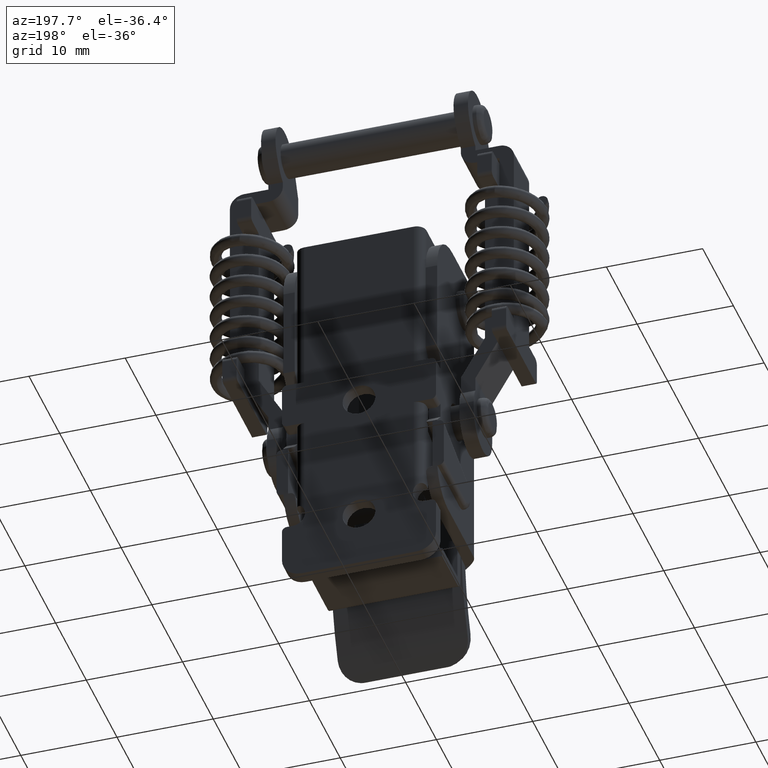
[diagram: clean part render]
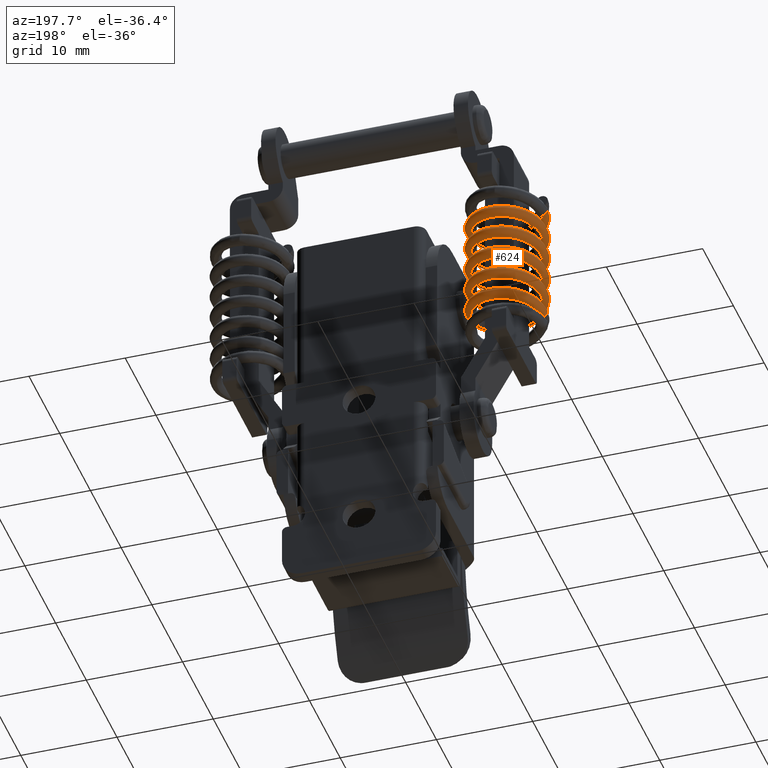
[diagram: same view with one face highlighted and labeled with its STEP entity id]
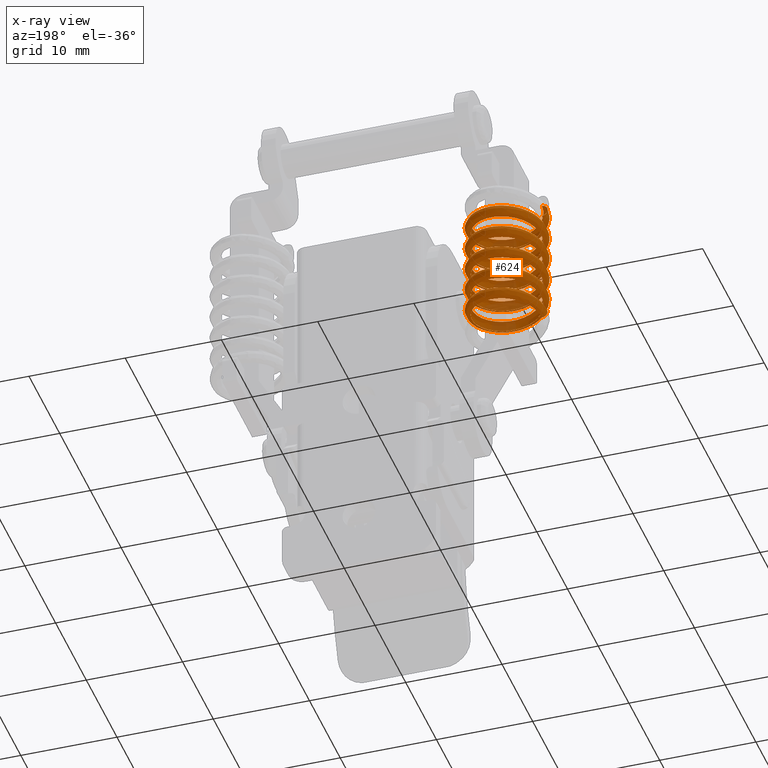
[diagram: x-ray of the same camera — body ghosted, the highlighted face saturated]
A machine part, auxiliary view. The second image highlights one B-rep face of the part: STEP entity #624.
The next image is the same camera in x-ray: the body ghosted, the highlighted face saturated — about 14% of this face is hidden behind the body in this view.
In plain terms, the highlighted face is a freeform B-spline surface patch.
Its self-contained STEP definition (entity closure, byte-faithful):
#624=ADVANCED_FACE('',(#4232),#4231,.F.);
#4231=( BOUNDED_SURFACE() B_SPLINE_SURFACE( 3,2,((#6628,#6629,#6630,#6631,#6632,#6633,#6634,#6635,#6636,#6637,#6638,#6639,#6640,#6641,#6642,#6643,#6644,#6645,#6646,#6647,#6648,#6649,#6650,#6651,#6652,#6653,#6654,#6655,#6656,#6657,#6658,#6659,#6660,#6661,#6662,#6663,#6664,#6665,#6666,#6667,#6668,#6669,#6670,#6671,#6672,#6673,#6674,#6675,#6676,#6677,#6678,#6679,#6680,#6681,#6682,#6683,#6684,#6685,#6686,#6687,#6688),(#6689,#6690,#6691,#6692,#6693,#6694,#6695,#6696,#6697,#6698,#6699,#6700,#6701,#6702,#6703,#6704,#6705,#6706,#6707,#6708,#6709,#6710,#6711,#6712,#6713,#6714,#6715,#6716,#6717,#6718,#6719,#6720,#6721,#6722,#6723,#6724,#6725,#6726,#6727,#6728,#6729,#6730,#6731,#6732,#6733,#6734,#6735,#6736,#6737,#6738,#6739,#6740,#6741,#6742,#6743,#6744,#6745,#6746,#6747,#6748,#6749),(#6750,#6751,#6752,#6753,#6754,#6755,#6756,#6757,#6758,#6759,#6760,#6761,#6762,#6763,#6764,#6765,#6766,#6767,#6768,#6769,#6770,#6771,#6772,#6773,#6774,#6775,#6776,#6777,#6778,#6779,#6780,#6781,#6782,#6783,#6784,#6785,#6786,#6787,#6788,#6789,#6790,#6791,#6792,#6793,#6794,#6795,#6796,#6797,#6798,#6799,#6800,#6801,#6802,#6803,#6804,#6805,#6806,#6807,#6808,#6809,#6810),(#6811,#6812,#6813,#6814,#6815,#6816,#6817,#6818,#6819,#6820,#6821,#6822,#6823,#6824,#6825,#6826,#6827,#6828,#6829,#6830,#6831,#6832,#6833,#6834,#6835,#6836,#6837,#6838,#6839,#6840,#6841,#6842,#6843,#6844,#6845,#6846,#6847,#6848,#6849,#6850,#6851,#6852,#6853,#6854,#6855,#6856,#6857,#6858,#6859,#6860,#6861,#6862,#6863,#6864,#6865,#6866,#6867,#6868,#6869,#6870,#6871),(#6872,#6873,#6874,#6875,#6876,#6877,#6878,#6879,#6880,#6881,#6882,#6883,#6884,#6885,#6886,#6887,#6888,#6889,#6890,#6891,#6892,#6893,#6894,#6895,#6896,#6897,#6898,#6899,#6900,#6901,#6902,#6903,#6904,#6905,#6906,#6907,#6908,#6909,#6910,#6911,#6912,#6913,#6914,#6915,#6916,#6917,#6918,#6919,#6920,#6921,#6922,#6923,#6924,#6925,#6926,#6927,#6928,#6929,#6930,#6931,#6932),(#6933,#6934,#6935,#6936,#6937,#6938,#6939,#6940,#6941,#6942,#6943,#6944,#6945,#6946,#6947,#6948,#6949,#6950,#6951,#6952,#6953,#6954,#6955,#6956,#6957,#6958,#6959,#6960,#6961,#6962,#6963,#6964,#6965,#6966,#6967,#6968,#6969,#6970,#6971,#6972,#6973,#6974,#6975,#6976,#6977,#6978,#6979,#6980,#6981,#6982,#6983,#6984,#6985,#6986,#6987,#6988,#6989,#6990,#6991,#6992,#6993)), .UNSPECIFIED.,.F.,.F.,.F.) B_SPLINE_SURFACE_WITH_KNOTS((4,2,4),(3,2,2,2,2,2,2,2,2,2,2,2,2,2,2,2,2,2,2,2,2,2,2,2,2,2,2,2,2,2,3),(0.00000000000E+00,2.50000000000E-01,5.00000000000E-01),(0.00000000000E+00,3.33333333333E-02,6.66666666667E-02,1.00000000000E-01,1.33333333333E-01,1.66666666667E-01,2.00000000000E-01,2.33333333333E-01,2.66666666667E-01,3.00000000000E-01,3.33333333333E-01,3.66666666667E-01,4.00000000000E-01,4.33333333333E-01,4.66666666667E-01,5.00000000000E-01,5.33333333333E-01,5.66666666667E-01,6.00000000000E-01,6.33333333333E-01,6.66666666667E-01,7.00000000000E-01,7.33333333333E-01,7.66666666667E-01,8.00000000000E-01,8.33333333333E-01,8.66666666667E-01,9.00000000000E-01,9.33333333333E-01,9.66666666667E-01,1.00000000000E+00), .UNSPECIFIED. ) GEOMETRIC_REPRESENTATION_ITEM() RATIONAL_B_SPLINE_SURFACE(((1.00000000000E+00,8.66025403784E-01,1.00000000000E+00,8.66025403784E-01,1.00000000000E+00,8.66025403784E-01,1.00000000000E+00,8.66025403784E-01,1.00000000000E+00,8.66025403784E-01,1.00000000000E+00,8.66025403784E-01,1.00000000000E+00,8.66025403784E-01,1.00000000000E+00,8.66025403784E-01,1.00000000000E+00,8.66025403784E-01,1.00000000000E+00,8.66025403784E-01,1.00000000000E+00,8.66025403784E-01,1.00000000000E+00,8.66025403784E-01,1.00000000000E+00,8.66025403784E-01,1.00000000000E+00,8.66025403784E-01,1.00000000000E+00,8.66025403784E-01,1.00000000000E+00,8.66025403784E-01,1.00000000000E+00,8.66025403784E-01,1.00000000000E+00,8.66025403784E-01,1.00000000000E+00,8.66025403784E-01,1.00000000000E+00,8.66025403784E-01,1.00000000000E+00,8.66025403784E-01,1.00000000000E+00,8.66025403784E-01,1.00000000000E+00,8.66025403784E-01,1.00000000000E+00,8.66025403784E-01,1.00000000000E+00,8.66025403784E-01,1.00000000000E+00,8.66025403784E-01,1.00000000000E+00,8.66025403784E-01,1.00000000000E+00,8.66025403784E-01,1.00000000000E+00,8.66025403784E-01,1.00000000000E+00,8.66025403784E-01,1.00000000000E+00),(1.00000000000E+00,8.66025403784E-01,1.00000000000E+00,8.66025403784E-01,1.00000000000E+00,8.66025403784E-01,1.00000000000E+00,8.66025403784E-01,1.00000000000E+00,8.66025403784E-01,1.00000000000E+00,8.66025403784E-01,1.00000000000E+00,8.66025403784E-01,1.00000000000E+00,8.66025403784E-01,1.00000000000E+00,8.66025403784E-01,1.00000000000E+00,8.66025403784E-01,1.00000000000E+00,8.66025403784E-01,1.00000000000E+00,8.66025403784E-01,1.00000000000E+00,8.66025403784E-01,1.00000000000E+00,8.66025403784E-01,1.00000000000E+00,8.66025403784E-01,1.00000000000E+00,8.66025403784E-01,1.00000000000E+00,8.66025403784E-01,1.00000000000E+00,8.66025403784E-01,1.00000000000E+00,8.66025403784E-01,1.00000000000E+00,8.66025403784E-01,1.00000000000E+00,8.66025403784E-01,1.00000000000E+00,8.66025403784E-01,1.00000000000E+00,8.66025403784E-01,1.00000000000E+00,8.66025403784E-01,1.00000000000E+00,8.66025403784E-01,1.00000000000E+00,8.66025403784E-01,1.00000000000E+00,8.66025403784E-01,1.00000000000E+00,8.66025403784E-01,1.00000000000E+00,8.66025403784E-01,1.00000000000E+00,8.66025403784E-01,1.00000000000E+00),(1.00000000000E+00,8.66025403784E-01,1.00000000000E+00,8.66025403784E-01,1.00000000000E+00,8.66025403784E-01,1.00000000000E+00,8.66025403784E-01,1.00000000000E+00,8.66025403784E-01,1.00000000000E+00,8.66025403784E-01,1.00000000000E+00,8.66025403784E-01,1.00000000000E+00,8.66025403784E-01,1.00000000000E+00,8.66025403784E-01,1.00000000000E+00,8.66025403784E-01,1.00000000000E+00,8.66025403784E-01,1.00000000000E+00,8.66025403784E-01,1.00000000000E+00,8.66025403784E-01,1.00000000000E+00,8.66025403784E-01,1.00000000000E+00,8.66025403784E-01,1.00000000000E+00,8.66025403784E-01,1.00000000000E+00,8.66025403784E-01,1.00000000000E+00,8.66025403784E-01,1.00000000000E+00,8.66025403784E-01,1.00000000000E+00,8.66025403784E-01,1.00000000000E+00,8.66025403784E-01,1.00000000000E+00,8.66025403784E-01,1.00000000000E+00,8.66025403784E-01,1.00000000000E+00,8.66025403784E-01,1.00000000000E+00,8.66025403784E-01,1.00000000000E+00,8.66025403784E-01,1.00000000000E+00,8.66025403784E-01,1.00000000000E+00,8.66025403784E-01,1.00000000000E+00,8.66025403784E-01,1.00000000000E+00,8.66025403784E-01,1.00000000000E+00),(1.00000000000E+00,8.66025403784E-01,1.00000000000E+00,8.66025403784E-01,1.00000000000E+00,8.66025403784E-01,1.00000000000E+00,8.66025403784E-01,1.00000000000E+00,8.66025403784E-01,1.00000000000E+00,8.66025403784E-01,1.00000000000E+00,8.66025403784E-01,1.00000000000E+00,8.66025403784E-01,1.00000000000E+00,8.66025403784E-01,1.00000000000E+00,8.66025403784E-01,1.00000000000E+00,8.66025403784E-01,1.00000000000E+00,8.66025403784E-01,1.00000000000E+00,8.66025403784E-01,1.00000000000E+00,8.66025403784E-01,1.00000000000E+00,8.66025403784E-01,1.00000000000E+00,8.66025403784E-01,1.00000000000E+00,8.66025403784E-01,1.00000000000E+00,8.66025403784E-01,1.00000000000E+00,8.66025403784E-01,1.00000000000E+00,8.66025403784E-01,1.00000000000E+00,8.66025403784E-01,1.00000000000E+00,8.66025403784E-01,1.00000000000E+00,8.66025403784E-01,1.00000000000E+00,8.66025403784E-01,1.00000000000E+00,8.66025403784E-01,1.00000000000E+00,8.66025403784E-01,1.00000000000E+00,8.66025403784E-01,1.00000000000E+00,8.66025403784E-01,1.00000000000E+00,8.66025403784E-01,1.00000000000E+00,8.66025403784E-01,1.00000000000E+00),(1.00000000000E+00,8.66025403784E-01,1.00000000000E+00,8.66025403784E-01,1.00000000000E+00,8.66025403784E-01,1.00000000000E+00,8.66025403784E-01,1.00000000000E+00,8.66025403784E-01,1.00000000000E+00,8.66025403784E-01,1.00000000000E+00,8.66025403784E-01,1.00000000000E+00,8.66025403784E-01,1.00000000000E+00,8.66025403784E-01,1.00000000000E+00,8.66025403784E-01,1.00000000000E+00,8.66025403784E-01,1.00000000000E+00,8.66025403784E-01,1.00000000000E+00,8.66025403784E-01,1.00000000000E+00,8.66025403784E-01,1.00000000000E+00,8.66025403784E-01,1.00000000000E+00,8.66025403784E-01,1.00000000000E+00,8.66025403784E-01,1.00000000000E+00,8.66025403784E-01,1.00000000000E+00,8.66025403784E-01,1.00000000000E+00,8.66025403784E-01,1.00000000000E+00,8.66025403784E-01,1.00000000000E+00,8.66025403784E-01,1.00000000000E+00,8.66025403784E-01,1.00000000000E+00,8.66025403784E-01,1.00000000000E+00,8.66025403784E-01,1.00000000000E+00,8.66025403784E-01,1.00000000000E+00,8.66025403784E-01,1.00000000000E+00,8.66025403784E-01,1.00000000000E+00,8.66025403784E-01,1.00000000000E+00,8.66025403784E-01,1.00000000000E+00),(1.00000000000E+00,8.66025403784E-01,1.00000000000E+00,8.66025403784E-01,1.00000000000E+00,8.66025403784E-01,1.00000000000E+00,8.66025403784E-01,1.00000000000E+00,8.66025403784E-01,1.00000000000E+00,8.66025403784E-01,1.00000000000E+00,8.66025403784E-01,1.00000000000E+00,8.66025403784E-01,1.00000000000E+00,8.66025403784E-01,1.00000000000E+00,8.66025403784E-01,1.00000000000E+00,8.66025403784E-01,1.00000000000E+00,8.66025403784E-01,1.00000000000E+00,8.66025403784E-01,1.00000000000E+00,8.66025403784E-01,1.00000000000E+00,8.66025403784E-01,1.00000000000E+00,8.66025403784E-01,1.00000000000E+00,8.66025403784E-01,1.00000000000E+00,8.66025403784E-01,1.00000000000E+00,8.66025403784E-01,1.00000000000E+00,8.66025403784E-01,1.00000000000E+00,8.66025403784E-01,1.00000000000E+00,8.66025403784E-01,1.00000000000E+00,8.66025403784E-01,1.00000000000E+00,8.66025403784E-01,1.00000000000E+00,8.66025403784E-01,1.00000000000E+00,8.66025403784E-01,1.00000000000E+00,8.66025403784E-01,1.00000000000E+00,8.66025403784E-01,1.00000000000E+00,8.66025403784E-01,1.00000000000E+00,8.66025403784E-01,1.00000000000E+00))) REPRESENTATION_ITEM('') SURFACE() );
#4232=FACE_OUTER_BOUND('',#6994,.T.);
#6628=CARTESIAN_POINT('',(9.65051162410E+00,-1.52982175450E+00,-1.14124925126E+01));
#6629=CARTESIAN_POINT('',(9.68555175230E+00,-3.60798733728E+00,-1.16221591792E+01));
#6630=CARTESIAN_POINT('',(1.15028160043E+01,-4.61672448749E+00,-1.18318258459E+01));
#6631=CARTESIAN_POINT('',(1.33200802564E+01,-5.62546163771E+00,-1.20414925126E+01));
#6632=CARTESIAN_POINT('',(1.51023043802E+01,-4.55603320515E+00,-1.22511591792E+01));
#6633=CARTESIAN_POINT('',(1.68845285041E+01,-3.48660477260E+00,-1.24608258459E+01));
#6634=CARTESIAN_POINT('',(1.68494883759E+01,-1.40843918983E+00,-1.26704925126E+01));
#6635=CARTESIAN_POINT('',(1.68144482477E+01,6.69726392945E-01,-1.28801591792E+01));
#6636=CARTESIAN_POINT('',(1.49971839957E+01,1.67846354316E+00,-1.30898258459E+01));
#6637=CARTESIAN_POINT('',(1.31799197436E+01,2.68720069338E+00,-1.32994925126E+01));
#6638=CARTESIAN_POINT('',(1.13976956198E+01,1.61777226082E+00,-1.35091591792E+01));
#6639=CARTESIAN_POINT('',(9.61547149590E+00,5.48343828267E-01,-1.37188258459E+01));
#6640=CARTESIAN_POINT('',(9.65051162410E+00,-1.52982175450E+00,-1.39284925126E+01));
#6641=CARTESIAN_POINT('',(9.68555175230E+00,-3.60798733728E+00,-1.41381591792E+01));
#6642=CARTESIAN_POINT('',(1.15028160043E+01,-4.61672448749E+00,-1.43478258459E+01));
#6643=CARTESIAN_POINT('',(1.33200802564E+01,-5.62546163771E+00,-1.45574925126E+01));
#6644=CARTESIAN_POINT('',(1.51023043802E+01,-4.55603320515E+00,-1.47671591792E+01));
#6645=CARTESIAN_POINT('',(1.68845285041E+01,-3.48660477260E+00,-1.49768258459E+01));
#6646=CARTESIAN_POINT('',(1.68494883759E+01,-1.40843918983E+00,-1.51864925126E+01));
#6647=CARTESIAN_POINT('',(1.68144482477E+01,6.69726392945E-01,-1.53961591792E+01));
#6648=CARTESIAN_POINT('',(1.49971839957E+01,1.67846354316E+00,-1.56058258459E+01));
#6649=CARTESIAN_POINT('',(1.31799197436E+01,2.68720069338E+00,-1.58154925126E+01));
#6650=CARTESIAN_POINT('',(1.13976956198E+01,1.61777226082E+00,-1.60251591792E+01));
#6651=CARTESIAN_POINT('',(9.61547149590E+00,5.48343828267E-01,-1.62348258459E+01));
#6652=CARTESIAN_POINT('',(9.65051162410E+00,-1.52982175450E+00,-1.64444925126E+01));
#6653=CARTESIAN_POINT('',(9.68555175230E+00,-3.60798733728E+00,-1.66541591792E+01));
#6654=CARTESIAN_POINT('',(1.15028160043E+01,-4.61672448749E+00,-1.68638258459E+01));
#6655=CARTESIAN_POINT('',(1.33200802564E+01,-5.62546163771E+00,-1.70734925126E+01));
#6656=CARTESIAN_POINT('',(1.51023043802E+01,-4.55603320515E+00,-1.72831591792E+01));
#6657=CARTESIAN_POINT('',(1.68845285041E+01,-3.48660477260E+00,-1.74928258459E+01));
#6658=CARTESIAN_POINT('',(1.68494883759E+01,-1.40843918983E+00,-1.77024925126E+01));
#6659=CARTESIAN_POINT('',(1.68144482477E+01,6.69726392945E-01,-1.79121591792E+01));
#6660=CARTESIAN_POINT('',(1.49971839957E+01,1.67846354316E+00,-1.81218258459E+01));
#6661=CARTESIAN_POINT('',(1.31799197436E+01,2.68720069338E+00,-1.83314925126E+01));
#6662=CARTESIAN_POINT('',(1.13976956198E+01,1.61777226082E+00,-1.85411591792E+01));
#6663=CARTESIAN_POINT('',(9.61547149590E+00,5.48343828267E-01,-1.87508258459E+01));
#6664=CARTESIAN_POINT('',(9.65051162410E+00,-1.52982175450E+00,-1.89604925126E+01));
#6665=CARTESIAN_POINT('',(9.68555175230E+00,-3.60798733728E+00,-1.91701591792E+01));
#6666=CARTESIAN_POINT('',(1.15028160043E+01,-4.61672448749E+00,-1.93798258459E+01));
#6667=CARTESIAN_POINT('',(1.33200802564E+01,-5.62546163771E+00,-1.95894925126E+01));
#6668=CARTESIAN_POINT('',(1.51023043802E+01,-4.55603320515E+00,-1.97991591792E+01));
#6669=CARTESIAN_POINT('',(1.68845285041E+01,-3.48660477260E+00,-2.00088258459E+01));
#6670=CARTESIAN_POINT('',(1.68494883759E+01,-1.40843918983E+00,-2.02184925126E+01));
#6671=CARTESIAN_POINT('',(1.68144482477E+01,6.69726392945E-01,-2.04281591792E+01));
#6672=CARTESIAN_POINT('',(1.49971839957E+01,1.67846354316E+00,-2.06378258459E+01));
#6673=CARTESIAN_POINT('',(1.31799197436E+01,2.68720069338E+00,-2.08474925126E+01));
#6674=CARTESIAN_POINT('',(1.13976956198E+01,1.61777226082E+00,-2.10571591792E+01));
#6675=CARTESIAN_POINT('',(9.61547149590E+00,5.48343828267E-01,-2.12668258459E+01));
#6676=CARTESIAN_POINT('',(9.65051162410E+00,-1.52982175450E+00,-2.14764925126E+01));
#6677=CARTESIAN_POINT('',(9.68555175230E+00,-3.60798733728E+00,-2.16861591792E+01));
#6678=CARTESIAN_POINT('',(1.15028160043E+01,-4.61672448749E+00,-2.18958258459E+01));
#6679=CARTESIAN_POINT('',(1.33200802564E+01,-5.62546163771E+00,-2.21054925126E+01));
#6680=CARTESIAN_POINT('',(1.51023043802E+01,-4.55603320515E+00,-2.23151591792E+01));
#6681=CARTESIAN_POINT('',(1.68845285041E+01,-3.48660477260E+00,-2.25248258459E+01));
#6682=CARTESIAN_POINT('',(1.68494883759E+01,-1.40843918983E+00,-2.27344925126E+01));
#6683=CARTESIAN_POINT('',(1.68144482477E+01,6.69726392945E-01,-2.29441591792E+01));
#6684=CARTESIAN_POINT('',(1.49971839957E+01,1.67846354316E+00,-2.31538258459E+01));
#6685=CARTESIAN_POINT('',(1.31799197436E+01,2.68720069338E+00,-2.33634925126E+01));
#6686=CARTESIAN_POINT('',(1.13976956198E+01,1.61777226082E+00,-2.35731591792E+01));
#6687=CARTESIAN_POINT('',(9.61547149590E+00,5.48343828267E-01,-2.37828258459E+01));
#6688=CARTESIAN_POINT('',(9.65051162410E+00,-1.52982175450E+00,-2.39924925126E+01));
#6689=CARTESIAN_POINT('',(9.31918786790E+00,-1.53540823278E+00,-1.14124925126E+01));
#6690=CARTESIAN_POINT('',(9.35745335083E+00,-3.80486367539E+00,-1.16221591792E+01));
#6691=CARTESIAN_POINT('',(1.13419921584E+01,-4.90645251638E+00,-1.18318258459E+01));
#6692=CARTESIAN_POINT('',(1.33265309659E+01,-6.00804135737E+00,-1.20414925126E+01));
#6693=CARTESIAN_POINT('',(1.52728042905E+01,-4.84017475576E+00,-1.22511591792E+01));
#6694=CARTESIAN_POINT('',(1.72190776150E+01,-3.67230815415E+00,-1.24608258459E+01));
#6695=CARTESIAN_POINT('',(1.71808121321E+01,-1.40285271155E+00,-1.26704925126E+01));
#6696=CARTESIAN_POINT('',(1.71425466492E+01,8.66602731057E-01,-1.28801591792E+01));
#6697=CARTESIAN_POINT('',(1.51580078416E+01,1.96819157205E+00,-1.30898258459E+01));
#6698=CARTESIAN_POINT('',(1.31734690341E+01,3.06978041304E+00,-1.32994925126E+01));
#6699=CARTESIAN_POINT('',(1.12271957095E+01,1.90191381143E+00,-1.35091591792E+01));
#6700=CARTESIAN_POINT('',(9.28092238496E+00,7.34047209818E-01,-1.37188258459E+01));
#6701=CARTESIAN_POINT('',(9.31918786790E+00,-1.53540823278E+00,-1.39284925126E+01));
#6702=CARTESIAN_POINT('',(9.35745335083E+00,-3.80486367539E+00,-1.41381591792E+01));
#6703=CARTESIAN_POINT('',(1.13419921584E+01,-4.90645251638E+00,-1.43478258459E+01));
#6704=CARTESIAN_POINT('',(1.33265309659E+01,-6.00804135737E+00,-1.45574925126E+01));
#6705=CARTESIAN_POINT('',(1.52728042905E+01,-4.84017475576E+00,-1.47671591792E+01));
#6706=CARTESIAN_POINT('',(1.72190776150E+01,-3.67230815415E+00,-1.49768258459E+01));
#6707=CARTESIAN_POINT('',(1.71808121321E+01,-1.40285271155E+00,-1.51864925126E+01));
#6708=CARTESIAN_POINT('',(1.71425466492E+01,8.66602731057E-01,-1.53961591792E+01));
#6709=CARTESIAN_POINT('',(1.51580078416E+01,1.96819157205E+00,-1.56058258459E+01));
#6710=CARTESIAN_POINT('',(1.31734690341E+01,3.06978041304E+00,-1.58154925126E+01));
#6711=CARTESIAN_POINT('',(1.12271957095E+01,1.90191381143E+00,-1.60251591792E+01));
#6712=CARTESIAN_POINT('',(9.28092238496E+00,7.34047209818E-01,-1.62348258459E+01));
#6713=CARTESIAN_POINT('',(9.31918786790E+00,-1.53540823278E+00,-1.64444925126E+01));
#6714=CARTESIAN_POINT('',(9.35745335083E+00,-3.80486367539E+00,-1.66541591792E+01));
#6715=CARTESIAN_POINT('',(1.13419921584E+01,-4.90645251638E+00,-1.68638258459E+01));
#6716=CARTESIAN_POINT('',(1.33265309659E+01,-6.00804135737E+00,-1.70734925126E+01));
#6717=CARTESIAN_POINT('',(1.52728042905E+01,-4.84017475576E+00,-1.72831591792E+01));
#6718=CARTESIAN_POINT('',(1.72190776150E+01,-3.67230815415E+00,-1.74928258459E+01));
#6719=CARTESIAN_POINT('',(1.71808121321E+01,-1.40285271155E+00,-1.77024925126E+01));
#6720=CARTESIAN_POINT('',(1.71425466492E+01,8.66602731057E-01,-1.79121591792E+01));
#6721=CARTESIAN_POINT('',(1.51580078416E+01,1.96819157205E+00,-1.81218258459E+01));
#6722=CARTESIAN_POINT('',(1.31734690341E+01,3.06978041304E+00,-1.83314925126E+01));
#6723=CARTESIAN_POINT('',(1.12271957095E+01,1.90191381143E+00,-1.85411591792E+01));
#6724=CARTESIAN_POINT('',(9.28092238496E+00,7.34047209818E-01,-1.87508258459E+01));
#6725=CARTESIAN_POINT('',(9.31918786790E+00,-1.53540823278E+00,-1.89604925126E+01));
#6726=CARTESIAN_POINT('',(9.35745335083E+00,-3.80486367539E+00,-1.91701591792E+01));
#6727=CARTESIAN_POINT('',(1.13419921584E+01,-4.90645251638E+00,-1.93798258459E+01));
#6728=CARTESIAN_POINT('',(1.33265309659E+01,-6.00804135737E+00,-1.95894925126E+01));
#6729=CARTESIAN_POINT('',(1.52728042905E+01,-4.84017475576E+00,-1.97991591792E+01));
#6730=CARTESIAN_POINT('',(1.72190776150E+01,-3.67230815415E+00,-2.00088258459E+01));
#6731=CARTESIAN_POINT('',(1.71808121321E+01,-1.40285271155E+00,-2.02184925126E+01));
#6732=CARTESIAN_POINT('',(1.71425466492E+01,8.66602731057E-01,-2.04281591792E+01));
#6733=CARTESIAN_POINT('',(1.51580078416E+01,1.96819157205E+00,-2.06378258459E+01));
#6734=CARTESIAN_POINT('',(1.31734690341E+01,3.06978041304E+00,-2.08474925126E+01));
#6735=CARTESIAN_POINT('',(1.12271957095E+01,1.90191381143E+00,-2.10571591792E+01));
#6736=CARTESIAN_POINT('',(9.28092238496E+00,7.34047209818E-01,-2.12668258459E+01));
#6737=CARTESIAN_POINT('',(9.31918786790E+00,-1.53540823278E+00,-2.14764925126E+01));
#6738=CARTESIAN_POINT('',(9.35745335083E+00,-3.80486367539E+00,-2.16861591792E+01));
#6739=CARTESIAN_POINT('',(1.13419921584E+01,-4.90645251638E+00,-2.18958258459E+01));
#6740=CARTESIAN_POINT('',(1.33265309659E+01,-6.00804135737E+00,-2.21054925126E+01));
#6741=CARTESIAN_POINT('',(1.52728042905E+01,-4.84017475576E+00,-2.23151591792E+01));
#6742=CARTESIAN_POINT('',(1.72190776150E+01,-3.67230815415E+00,-2.25248258459E+01));
#6743=CARTESIAN_POINT('',(1.71808121321E+01,-1.40285271155E+00,-2.27344925126E+01));
#6744=CARTESIAN_POINT('',(1.71425466492E+01,8.66602731057E-01,-2.29441591792E+01));
#6745=CARTESIAN_POINT('',(1.51580078416E+01,1.96819157205E+00,-2.31538258459E+01));
#6746=CARTESIAN_POINT('',(1.31734690341E+01,3.06978041304E+00,-2.33634925126E+01));
#6747=CARTESIAN_POINT('',(1.12271957095E+01,1.90191381143E+00,-2.35731591792E+01));
#6748=CARTESIAN_POINT('',(9.28092238496E+00,7.34047209818E-01,-2.37828258459E+01));
#6749=CARTESIAN_POINT('',(9.31918786790E+00,-1.53540823278E+00,-2.39924925126E+01));
#6750=CARTESIAN_POINT('',(9.05059689478E+00,-1.53993696823E+00,-1.11438633625E+01));
#6751=CARTESIAN_POINT('',(9.09147704434E+00,-3.96446348146E+00,-1.13535300291E+01));
#6752=CARTESIAN_POINT('',(1.12116186717E+01,-5.14132349005E+00,-1.15631966958E+01));
#6753=CARTESIAN_POINT('',(1.33317602991E+01,-6.31818349863E+00,-1.17728633625E+01));
#6754=CARTESIAN_POINT('',(1.54110217770E+01,-5.07051699398E+00,-1.19825300291E+01));
#6755=CARTESIAN_POINT('',(1.74902832548E+01,-3.82285048934E+00,-1.21921966958E+01));
#6756=CARTESIAN_POINT('',(1.74494031052E+01,-1.39832397610E+00,-1.24018633625E+01));
#6757=CARTESIAN_POINT('',(1.74085229557E+01,1.02620253713E+00,-1.26115300291E+01));
#6758=CARTESIAN_POINT('',(1.52883813283E+01,2.20306254572E+00,-1.28211966958E+01));
#6759=CARTESIAN_POINT('',(1.31682397009E+01,3.37992255430E+00,-1.30308633625E+01));
#6760=CARTESIAN_POINT('',(1.10889782230E+01,2.13225604965E+00,-1.32405300291E+01));
#6761=CARTESIAN_POINT('',(9.00971674522E+00,8.84589545007E-01,-1.34501966958E+01));
#6762=CARTESIAN_POINT('',(9.05059689478E+00,-1.53993696823E+00,-1.36598633625E+01));
#6763=CARTESIAN_POINT('',(9.09147704434E+00,-3.96446348146E+00,-1.38695300291E+01));
#6764=CARTESIAN_POINT('',(1.12116186717E+01,-5.14132349005E+00,-1.40791966958E+01));
#6765=CARTESIAN_POINT('',(1.33317602991E+01,-6.31818349863E+00,-1.42888633625E+01));
#6766=CARTESIAN_POINT('',(1.54110217770E+01,-5.07051699398E+00,-1.44985300291E+01));
#6767=CARTESIAN_POINT('',(1.74902832548E+01,-3.82285048934E+00,-1.47081966958E+01));
#6768=CARTESIAN_POINT('',(1.74494031052E+01,-1.39832397610E+00,-1.49178633625E+01));
#6769=CARTESIAN_POINT('',(1.74085229557E+01,1.02620253713E+00,-1.51275300291E+01));
#6770=CARTESIAN_POINT('',(1.52883813283E+01,2.20306254572E+00,-1.53371966958E+01));
#6771=CARTESIAN_POINT('',(1.31682397009E+01,3.37992255430E+00,-1.55468633625E+01));
#6772=CARTESIAN_POINT('',(1.10889782230E+01,2.13225604965E+00,-1.57565300291E+01));
#6773=CARTESIAN_POINT('',(9.00971674522E+00,8.84589545007E-01,-1.59661966958E+01));
#6774=CARTESIAN_POINT('',(9.05059689478E+00,-1.53993696823E+00,-1.61758633625E+01));
#6775=CARTESIAN_POINT('',(9.09147704434E+00,-3.96446348146E+00,-1.63855300291E+01));
#6776=CARTESIAN_POINT('',(1.12116186717E+01,-5.14132349005E+00,-1.65951966958E+01));
#6777=CARTESIAN_POINT('',(1.33317602991E+01,-6.31818349863E+00,-1.68048633625E+01));
#6778=CARTESIAN_POINT('',(1.54110217770E+01,-5.07051699398E+00,-1.70145300291E+01));
#6779=CARTESIAN_POINT('',(1.74902832548E+01,-3.82285048934E+00,-1.72241966958E+01));
#6780=CARTESIAN_POINT('',(1.74494031052E+01,-1.39832397610E+00,-1.74338633625E+01));
#6781=CARTESIAN_POINT('',(1.74085229557E+01,1.02620253713E+00,-1.76435300291E+01));
#6782=CARTESIAN_POINT('',(1.52883813283E+01,2.20306254572E+00,-1.78531966958E+01));
#6783=CARTESIAN_POINT('',(1.31682397009E+01,3.37992255430E+00,-1.80628633625E+01));
#6784=CARTESIAN_POINT('',(1.10889782230E+01,2.13225604965E+00,-1.82725300291E+01));
#6785=CARTESIAN_POINT('',(9.00971674522E+00,8.84589545007E-01,-1.84821966958E+01));
#6786=CARTESIAN_POINT('',(9.05059689478E+00,-1.53993696823E+00,-1.86918633625E+01));
#6787=CARTESIAN_POINT('',(9.09147704434E+00,-3.96446348146E+00,-1.89015300291E+01));
#6788=CARTESIAN_POINT('',(1.12116186717E+01,-5.14132349005E+00,-1.91111966958E+01));
#6789=CARTESIAN_POINT('',(1.33317602991E+01,-6.31818349863E+00,-1.93208633625E+01));
#6790=CARTESIAN_POINT('',(1.54110217770E+01,-5.07051699398E+00,-1.95305300291E+01));
#6791=CARTESIAN_POINT('',(1.74902832548E+01,-3.82285048934E+00,-1.97401966958E+01));
#6792=CARTESIAN_POINT('',(1.74494031052E+01,-1.39832397610E+00,-1.99498633625E+01));
#6793=CARTESIAN_POINT('',(1.74085229557E+01,1.02620253713E+00,-2.01595300291E+01));
#6794=CARTESIAN_POINT('',(1.52883813283E+01,2.20306254572E+00,-2.03691966958E+01));
#6795=CARTESIAN_POINT('',(1.31682397009E+01,3.37992255430E+00,-2.05788633625E+01));
#6796=CARTESIAN_POINT('',(1.10889782230E+01,2.13225604965E+00,-2.07885300291E+01));
#6797=CARTESIAN_POINT('',(9.00971674522E+00,8.84589545007E-01,-2.09981966958E+01));
#6798=CARTESIAN_POINT('',(9.05059689478E+00,-1.53993696823E+00,-2.12078633625E+01));
#6799=CARTESIAN_POINT('',(9.09147704434E+00,-3.96446348146E+00,-2.14175300291E+01));
#6800=CARTESIAN_POINT('',(1.12116186717E+01,-5.14132349005E+00,-2.16271966958E+01));
#6801=CARTESIAN_POINT('',(1.33317602991E+01,-6.31818349863E+00,-2.18368633625E+01));
#6802=CARTESIAN_POINT('',(1.54110217770E+01,-5.07051699398E+00,-2.20465300291E+01));
#6803=CARTESIAN_POINT('',(1.74902832548E+01,-3.82285048934E+00,-2.22561966958E+01));
#6804=CARTESIAN_POINT('',(1.74494031052E+01,-1.39832397610E+00,-2.24658633625E+01));
#6805=CARTESIAN_POINT('',(1.74085229557E+01,1.02620253713E+00,-2.26755300291E+01));
#6806=CARTESIAN_POINT('',(1.52883813283E+01,2.20306254572E+00,-2.28851966958E+01));
#6807=CARTESIAN_POINT('',(1.31682397009E+01,3.37992255430E+00,-2.30948633625E+01));
#6808=CARTESIAN_POINT('',(1.10889782230E+01,2.13225604965E+00,-2.33045300291E+01));
#6809=CARTESIAN_POINT('',(9.00971674522E+00,8.84589545007E-01,-2.35141966958E+01));
#6810=CARTESIAN_POINT('',(9.05059689478E+00,-1.53993696823E+00,-2.37238633625E+01));
#6811=CARTESIAN_POINT('',(9.05059689478E+00,-1.53993696823E+00,-1.04811216627E+01));
#6812=CARTESIAN_POINT('',(9.09147704434E+00,-3.96446348146E+00,-1.06907883293E+01));
#6813=CARTESIAN_POINT('',(1.12116186717E+01,-5.14132349005E+00,-1.09004549960E+01));
#6814=CARTESIAN_POINT('',(1.33317602991E+01,-6.31818349863E+00,-1.11101216627E+01));
#6815=CARTESIAN_POINT('',(1.54110217770E+01,-5.07051699398E+00,-1.13197883293E+01));
#6816=CARTESIAN_POINT('',(1.74902832548E+01,-3.82285048934E+00,-1.15294549960E+01));
#6817=CARTESIAN_POINT('',(1.74494031052E+01,-1.39832397610E+00,-1.17391216627E+01));
#6818=CARTESIAN_POINT('',(1.74085229557E+01,1.02620253713E+00,-1.19487883293E+01));
#6819=CARTESIAN_POINT('',(1.52883813283E+01,2.20306254572E+00,-1.21584549960E+01));
#6820=CARTESIAN_POINT('',(1.31682397009E+01,3.37992255430E+00,-1.23681216627E+01));
#6821=CARTESIAN_POINT('',(1.10889782230E+01,2.13225604965E+00,-1.25777883293E+01));
#6822=CARTESIAN_POINT('',(9.00971674522E+00,8.84589545007E-01,-1.27874549960E+01));
#6823=CARTESIAN_POINT('',(9.05059689478E+00,-1.53993696823E+00,-1.29971216627E+01));
#6824=CARTESIAN_POINT('',(9.09147704434E+00,-3.96446348146E+00,-1.32067883293E+01));
#6825=CARTESIAN_POINT('',(1.12116186717E+01,-5.14132349005E+00,-1.34164549960E+01));
#6826=CARTESIAN_POINT('',(1.33317602991E+01,-6.31818349863E+00,-1.36261216627E+01));
#6827=CARTESIAN_POINT('',(1.54110217770E+01,-5.07051699398E+00,-1.38357883293E+01));
#6828=CARTESIAN_POINT('',(1.74902832548E+01,-3.82285048934E+00,-1.40454549960E+01));
#6829=CARTESIAN_POINT('',(1.74494031052E+01,-1.39832397610E+00,-1.42551216627E+01));
#6830=CARTESIAN_POINT('',(1.74085229557E+01,1.02620253713E+00,-1.44647883293E+01));
#6831=CARTESIAN_POINT('',(1.52883813283E+01,2.20306254572E+00,-1.46744549960E+01));
#6832=CARTESIAN_POINT('',(1.31682397009E+01,3.37992255430E+00,-1.48841216627E+01));
#6833=CARTESIAN_POINT('',(1.10889782230E+01,2.13225604965E+00,-1.50937883293E+01));
#6834=CARTESIAN_POINT('',(9.00971674522E+00,8.84589545007E-01,-1.53034549960E+01));
#6835=CARTESIAN_POINT('',(9.05059689478E+00,-1.53993696823E+00,-1.55131216627E+01));
#6836=CARTESIAN_POINT('',(9.09147704434E+00,-3.96446348146E+00,-1.57227883293E+01));
#6837=CARTESIAN_POINT('',(1.12116186717E+01,-5.14132349005E+00,-1.59324549960E+01));
#6838=CARTESIAN_POINT('',(1.33317602991E+01,-6.31818349863E+00,-1.61421216627E+01));
#6839=CARTESIAN_POINT('',(1.54110217770E+01,-5.07051699398E+00,-1.63517883293E+01));
#6840=CARTESIAN_POINT('',(1.74902832548E+01,-3.82285048934E+00,-1.65614549960E+01));
#6841=CARTESIAN_POINT('',(1.74494031052E+01,-1.39832397610E+00,-1.67711216627E+01));
#6842=CARTESIAN_POINT('',(1.74085229557E+01,1.02620253713E+00,-1.69807883293E+01));
#6843=CARTESIAN_POINT('',(1.52883813283E+01,2.20306254572E+00,-1.71904549960E+01));
#6844=CARTESIAN_POINT('',(1.31682397009E+01,3.37992255430E+00,-1.74001216627E+01));
#6845=CARTESIAN_POINT('',(1.10889782230E+01,2.13225604965E+00,-1.76097883293E+01));
#6846=CARTESIAN_POINT('',(9.00971674522E+00,8.84589545007E-01,-1.78194549960E+01));
#6847=CARTESIAN_POINT('',(9.05059689478E+00,-1.53993696823E+00,-1.80291216627E+01));
#6848=CARTESIAN_POINT('',(9.09147704434E+00,-3.96446348146E+00,-1.82387883293E+01));
#6849=CARTESIAN_POINT('',(1.12116186717E+01,-5.14132349005E+00,-1.84484549960E+01));
#6850=CARTESIAN_POINT('',(1.33317602991E+01,-6.31818349863E+00,-1.86581216627E+01));
#6851=CARTESIAN_POINT('',(1.54110217770E+01,-5.07051699398E+00,-1.88677883293E+01));
#6852=CARTESIAN_POINT('',(1.74902832548E+01,-3.82285048934E+00,-1.90774549960E+01));
#6853=CARTESIAN_POINT('',(1.74494031052E+01,-1.39832397610E+00,-1.92871216627E+01));
#6854=CARTESIAN_POINT('',(1.74085229557E+01,1.02620253713E+00,-1.94967883293E+01));
#6855=CARTESIAN_POINT('',(1.52883813283E+01,2.20306254572E+00,-1.97064549960E+01));
#6856=CARTESIAN_POINT('',(1.31682397009E+01,3.37992255430E+00,-1.99161216627E+01));
#6857=CARTESIAN_POINT('',(1.10889782230E+01,2.13225604965E+00,-2.01257883293E+01));
#6858=CARTESIAN_POINT('',(9.00971674522E+00,8.84589545007E-01,-2.03354549960E+01));
#6859=CARTESIAN_POINT('',(9.05059689478E+00,-1.53993696823E+00,-2.05451216627E+01));
#6860=CARTESIAN_POINT('',(9.09147704434E+00,-3.96446348146E+00,-2.07547883293E+01));
#6861=CARTESIAN_POINT('',(1.12116186717E+01,-5.14132349005E+00,-2.09644549960E+01));
#6862=CARTESIAN_POINT('',(1.33317602991E+01,-6.31818349863E+00,-2.11741216627E+01));
#6863=CARTESIAN_POINT('',(1.54110217770E+01,-5.07051699398E+00,-2.13837883293E+01));
#6864=CARTESIAN_POINT('',(1.74902832548E+01,-3.82285048934E+00,-2.15934549960E+01));
#6865=CARTESIAN_POINT('',(1.74494031052E+01,-1.39832397610E+00,-2.18031216627E+01));
#6866=CARTESIAN_POINT('',(1.74085229557E+01,1.02620253713E+00,-2.20127883293E+01));
#6867=CARTESIAN_POINT('',(1.52883813283E+01,2.20306254572E+00,-2.22224549960E+01));
#6868=CARTESIAN_POINT('',(1.31682397009E+01,3.37992255430E+00,-2.24321216627E+01));
#6869=CARTESIAN_POINT('',(1.10889782230E+01,2.13225604965E+00,-2.26417883293E+01));
#6870=CARTESIAN_POINT('',(9.00971674522E+00,8.84589545007E-01,-2.28514549960E+01));
#6871=CARTESIAN_POINT('',(9.05059689478E+00,-1.53993696823E+00,-2.30611216627E+01));
#6872=CARTESIAN_POINT('',(9.31918786790E+00,-1.53540823278E+00,-1.02124925126E+01));
#6873=CARTESIAN_POINT('',(9.35745335083E+00,-3.80486367539E+00,-1.04221591792E+01));
#6874=CARTESIAN_POINT('',(1.13419921584E+01,-4.90645251638E+00,-1.06318258459E+01));
#6875=CARTESIAN_POINT('',(1.33265309659E+01,-6.00804135737E+00,-1.08414925126E+01));
#6876=CARTESIAN_POINT('',(1.52728042905E+01,-4.84017475576E+00,-1.10511591792E+01));
#6877=CARTESIAN_POINT('',(1.72190776150E+01,-3.67230815415E+00,-1.12608258459E+01));
#6878=CARTESIAN_POINT('',(1.71808121321E+01,-1.40285271155E+00,-1.14704925126E+01));
#6879=CARTESIAN_POINT('',(1.71425466492E+01,8.66602731057E-01,-1.16801591792E+01));
#6880=CARTESIAN_POINT('',(1.51580078416E+01,1.96819157205E+00,-1.18898258459E+01));
#6881=CARTESIAN_POINT('',(1.31734690341E+01,3.06978041304E+00,-1.20994925126E+01));
#6882=CARTESIAN_POINT('',(1.12271957095E+01,1.90191381143E+00,-1.23091591792E+01));
#6883=CARTESIAN_POINT('',(9.28092238496E+00,7.34047209818E-01,-1.25188258459E+01));
#6884=CARTESIAN_POINT('',(9.31918786790E+00,-1.53540823278E+00,-1.27284925126E+01));
#6885=CARTESIAN_POINT('',(9.35745335083E+00,-3.80486367539E+00,-1.29381591792E+01));
#6886=CARTESIAN_POINT('',(1.13419921584E+01,-4.90645251638E+00,-1.31478258459E+01));
#6887=CARTESIAN_POINT('',(1.33265309659E+01,-6.00804135737E+00,-1.33574925126E+01));
#6888=CARTESIAN_POINT('',(1.52728042905E+01,-4.84017475576E+00,-1.35671591792E+01));
#6889=CARTESIAN_POINT('',(1.72190776150E+01,-3.67230815415E+00,-1.37768258459E+01));
#6890=CARTESIAN_POINT('',(1.71808121321E+01,-1.40285271155E+00,-1.39864925126E+01));
#6891=CARTESIAN_POINT('',(1.71425466492E+01,8.66602731057E-01,-1.41961591792E+01));
#6892=CARTESIAN_POINT('',(1.51580078416E+01,1.96819157205E+00,-1.44058258459E+01));
#6893=CARTESIAN_POINT('',(1.31734690341E+01,3.06978041304E+00,-1.46154925126E+01));
#6894=CARTESIAN_POINT('',(1.12271957095E+01,1.90191381143E+00,-1.48251591792E+01));
#6895=CARTESIAN_POINT('',(9.28092238496E+00,7.34047209818E-01,-1.50348258459E+01));
#6896=CARTESIAN_POINT('',(9.31918786790E+00,-1.53540823278E+00,-1.52444925126E+01));
#6897=CARTESIAN_POINT('',(9.35745335083E+00,-3.80486367539E+00,-1.54541591792E+01));
#6898=CARTESIAN_POINT('',(1.13419921584E+01,-4.90645251638E+00,-1.56638258459E+01));
#6899=CARTESIAN_POINT('',(1.33265309659E+01,-6.00804135737E+00,-1.58734925126E+01));
#6900=CARTESIAN_POINT('',(1.52728042905E+01,-4.84017475576E+00,-1.60831591792E+01));
#6901=CARTESIAN_POINT('',(1.72190776150E+01,-3.67230815415E+00,-1.62928258459E+01));
#6902=CARTESIAN_POINT('',(1.71808121321E+01,-1.40285271155E+00,-1.65024925126E+01));
#6903=CARTESIAN_POINT('',(1.71425466492E+01,8.66602731057E-01,-1.67121591792E+01));
#6904=CARTESIAN_POINT('',(1.51580078416E+01,1.96819157205E+00,-1.69218258459E+01));
#6905=CARTESIAN_POINT('',(1.31734690341E+01,3.06978041304E+00,-1.71314925126E+01));
#6906=CARTESIAN_POINT('',(1.12271957095E+01,1.90191381143E+00,-1.73411591792E+01));
#6907=CARTESIAN_POINT('',(9.28092238496E+00,7.34047209818E-01,-1.75508258459E+01));
#6908=CARTESIAN_POINT('',(9.31918786790E+00,-1.53540823278E+00,-1.77604925126E+01));
#6909=CARTESIAN_POINT('',(9.35745335083E+00,-3.80486367539E+00,-1.79701591792E+01));
#6910=CARTESIAN_POINT('',(1.13419921584E+01,-4.90645251638E+00,-1.81798258459E+01));
#6911=CARTESIAN_POINT('',(1.33265309659E+01,-6.00804135737E+00,-1.83894925126E+01));
#6912=CARTESIAN_POINT('',(1.52728042905E+01,-4.84017475576E+00,-1.85991591792E+01));
#6913=CARTESIAN_POINT('',(1.72190776150E+01,-3.67230815415E+00,-1.88088258459E+01));
#6914=CARTESIAN_POINT('',(1.71808121321E+01,-1.40285271155E+00,-1.90184925126E+01));
#6915=CARTESIAN_POINT('',(1.71425466492E+01,8.66602731057E-01,-1.92281591792E+01));
#6916=CARTESIAN_POINT('',(1.51580078416E+01,1.96819157205E+00,-1.94378258459E+01));
#6917=CARTESIAN_POINT('',(1.31734690341E+01,3.06978041304E+00,-1.96474925126E+01));
#6918=CARTESIAN_POINT('',(1.12271957095E+01,1.90191381143E+00,-1.98571591792E+01));
#6919=CARTESIAN_POINT('',(9.28092238496E+00,7.34047209818E-01,-2.00668258459E+01));
#6920=CARTESIAN_POINT('',(9.31918786790E+00,-1.53540823278E+00,-2.02764925126E+01));
#6921=CARTESIAN_POINT('',(9.35745335083E+00,-3.80486367539E+00,-2.04861591792E+01));
#6922=CARTESIAN_POINT('',(1.13419921584E+01,-4.90645251638E+00,-2.06958258459E+01));
#6923=CARTESIAN_POINT('',(1.33265309659E+01,-6.00804135737E+00,-2.09054925126E+01));
#6924=CARTESIAN_POINT('',(1.52728042905E+01,-4.84017475576E+00,-2.11151591792E+01));
#6925=CARTESIAN_POINT('',(1.72190776150E+01,-3.67230815415E+00,-2.13248258459E+01));
#6926=CARTESIAN_POINT('',(1.71808121321E+01,-1.40285271155E+00,-2.15344925126E+01));
#6927=CARTESIAN_POINT('',(1.71425466492E+01,8.66602731057E-01,-2.17441591792E+01));
#6928=CARTESIAN_POINT('',(1.51580078416E+01,1.96819157205E+00,-2.19538258459E+01));
#6929=CARTESIAN_POINT('',(1.31734690341E+01,3.06978041304E+00,-2.21634925126E+01));
#6930=CARTESIAN_POINT('',(1.12271957095E+01,1.90191381143E+00,-2.23731591792E+01));
#6931=CARTESIAN_POINT('',(9.28092238496E+00,7.34047209818E-01,-2.25828258459E+01));
#6932=CARTESIAN_POINT('',(9.31918786790E+00,-1.53540823278E+00,-2.27924925126E+01));
#6933=CARTESIAN_POINT('',(9.65051162410E+00,-1.52982175450E+00,-1.02124925126E+01));
#6934=CARTESIAN_POINT('',(9.68555175230E+00,-3.60798733728E+00,-1.04221591792E+01));
#6935=CARTESIAN_POINT('',(1.15028160043E+01,-4.61672448749E+00,-1.06318258459E+01));
#6936=CARTESIAN_POINT('',(1.33200802564E+01,-5.62546163771E+00,-1.08414925126E+01));
#6937=CARTESIAN_POINT('',(1.51023043802E+01,-4.55603320515E+00,-1.10511591792E+01));
#6938=CARTESIAN_POINT('',(1.68845285041E+01,-3.48660477260E+00,-1.12608258459E+01));
#6939=CARTESIAN_POINT('',(1.68494883759E+01,-1.40843918983E+00,-1.14704925126E+01));
#6940=CARTESIAN_POINT('',(1.68144482477E+01,6.69726392945E-01,-1.16801591792E+01));
#6941=CARTESIAN_POINT('',(1.49971839957E+01,1.67846354316E+00,-1.18898258459E+01));
#6942=CARTESIAN_POINT('',(1.31799197436E+01,2.68720069338E+00,-1.20994925126E+01));
#6943=CARTESIAN_POINT('',(1.13976956198E+01,1.61777226082E+00,-1.23091591792E+01));
#6944=CARTESIAN_POINT('',(9.61547149590E+00,5.48343828267E-01,-1.25188258459E+01));
#6945=CARTESIAN_POINT('',(9.65051162410E+00,-1.52982175450E+00,-1.27284925126E+01));
#6946=CARTESIAN_POINT('',(9.68555175230E+00,-3.60798733728E+00,-1.29381591792E+01));
#6947=CARTESIAN_POINT('',(1.15028160043E+01,-4.61672448749E+00,-1.31478258459E+01));
#6948=CARTESIAN_POINT('',(1.33200802564E+01,-5.62546163771E+00,-1.33574925126E+01));
#6949=CARTESIAN_POINT('',(1.51023043802E+01,-4.55603320515E+00,-1.35671591792E+01));
#6950=CARTESIAN_POINT('',(1.68845285041E+01,-3.48660477260E+00,-1.37768258459E+01));
#6951=CARTESIAN_POINT('',(1.68494883759E+01,-1.40843918983E+00,-1.39864925126E+01));
#6952=CARTESIAN_POINT('',(1.68144482477E+01,6.69726392945E-01,-1.41961591792E+01));
#6953=CARTESIAN_POINT('',(1.49971839957E+01,1.67846354316E+00,-1.44058258459E+01));
#6954=CARTESIAN_POINT('',(1.31799197436E+01,2.68720069338E+00,-1.46154925126E+01));
#6955=CARTESIAN_POINT('',(1.13976956198E+01,1.61777226082E+00,-1.48251591792E+01));
#6956=CARTESIAN_POINT('',(9.61547149590E+00,5.48343828267E-01,-1.50348258459E+01));
#6957=CARTESIAN_POINT('',(9.65051162410E+00,-1.52982175450E+00,-1.52444925126E+01));
#6958=CARTESIAN_POINT('',(9.68555175230E+00,-3.60798733728E+00,-1.54541591792E+01));
#6959=CARTESIAN_POINT('',(1.15028160043E+01,-4.61672448749E+00,-1.56638258459E+01));
#6960=CARTESIAN_POINT('',(1.33200802564E+01,-5.62546163771E+00,-1.58734925126E+01));
#6961=CARTESIAN_POINT('',(1.51023043802E+01,-4.55603320515E+00,-1.60831591792E+01));
#6962=CARTESIAN_POINT('',(1.68845285041E+01,-3.48660477260E+00,-1.62928258459E+01));
#6963=CARTESIAN_POINT('',(1.68494883759E+01,-1.40843918983E+00,-1.65024925126E+01));
#6964=CARTESIAN_POINT('',(1.68144482477E+01,6.69726392945E-01,-1.67121591792E+01));
#6965=CARTESIAN_POINT('',(1.49971839957E+01,1.67846354316E+00,-1.69218258459E+01));
#6966=CARTESIAN_POINT('',(1.31799197436E+01,2.68720069338E+00,-1.71314925126E+01));
#6967=CARTESIAN_POINT('',(1.13976956198E+01,1.61777226082E+00,-1.73411591792E+01));
#6968=CARTESIAN_POINT('',(9.61547149590E+00,5.48343828267E-01,-1.75508258459E+01));
#6969=CARTESIAN_POINT('',(9.65051162410E+00,-1.52982175450E+00,-1.77604925126E+01));
#6970=CARTESIAN_POINT('',(9.68555175230E+00,-3.60798733728E+00,-1.79701591792E+01));
#6971=CARTESIAN_POINT('',(1.15028160043E+01,-4.61672448749E+00,-1.81798258459E+01));
#6972=CARTESIAN_POINT('',(1.33200802564E+01,-5.62546163771E+00,-1.83894925126E+01));
#6973=CARTESIAN_POINT('',(1.51023043802E+01,-4.55603320515E+00,-1.85991591792E+01));
#6974=CARTESIAN_POINT('',(1.68845285041E+01,-3.48660477260E+00,-1.88088258459E+01));
#6975=CARTESIAN_POINT('',(1.68494883759E+01,-1.40843918983E+00,-1.90184925126E+01));
#6976=CARTESIAN_POINT('',(1.68144482477E+01,6.69726392945E-01,-1.92281591792E+01));
#6977=CARTESIAN_POINT('',(1.49971839957E+01,1.67846354316E+00,-1.94378258459E+01));
#6978=CARTESIAN_POINT('',(1.31799197436E+01,2.68720069338E+00,-1.96474925126E+01));
#6979=CARTESIAN_POINT('',(1.13976956198E+01,1.61777226082E+00,-1.98571591792E+01));
#6980=CARTESIAN_POINT('',(9.61547149590E+00,5.48343828267E-01,-2.00668258459E+01));
#6981=CARTESIAN_POINT('',(9.65051162410E+00,-1.52982175450E+00,-2.02764925126E+01));
#6982=CARTESIAN_POINT('',(9.68555175230E+00,-3.60798733728E+00,-2.04861591792E+01));
#6983=CARTESIAN_POINT('',(1.15028160043E+01,-4.61672448749E+00,-2.06958258459E+01));
#6984=CARTESIAN_POINT('',(1.33200802564E+01,-5.62546163771E+00,-2.09054925126E+01));
#6985=CARTESIAN_POINT('',(1.51023043802E+01,-4.55603320515E+00,-2.11151591792E+01));
#6986=CARTESIAN_POINT('',(1.68845285041E+01,-3.48660477260E+00,-2.13248258459E+01));
#6987=CARTESIAN_POINT('',(1.68494883759E+01,-1.40843918983E+00,-2.15344925126E+01));
#6988=CARTESIAN_POINT('',(1.68144482477E+01,6.69726392945E-01,-2.17441591792E+01));
#6989=CARTESIAN_POINT('',(1.49971839957E+01,1.67846354316E+00,-2.19538258459E+01));
#6990=CARTESIAN_POINT('',(1.31799197436E+01,2.68720069338E+00,-2.21634925126E+01));
#6991=CARTESIAN_POINT('',(1.13976956198E+01,1.61777226082E+00,-2.23731591792E+01));
#6992=CARTESIAN_POINT('',(9.61547149590E+00,5.48343828267E-01,-2.25828258459E+01));
#6993=CARTESIAN_POINT('',(9.65051162410E+00,-1.52982175450E+00,-2.27924925126E+01));
#6994=EDGE_LOOP('',(#9779,#9780,#9781,#9782,#9783,#9784));
#9779=ORIENTED_EDGE('',*,*,#10823,.F.);
#9780=ORIENTED_EDGE('',*,*,#10824,.F.);
#9781=ORIENTED_EDGE('',*,*,#10825,.F.);
#9782=ORIENTED_EDGE('',*,*,#10826,.T.);
#9783=ORIENTED_EDGE('',*,*,#10827,.T.);
#9784=ORIENTED_EDGE('',*,*,#10828,.T.);
#10823=EDGE_CURVE('',#17368,#17369,#17370,.T.);
#10824=EDGE_CURVE('',#17376,#17368,#17377,.T.);
#10825=EDGE_CURVE('',#17383,#17376,#17384,.T.);
#10826=EDGE_CURVE('',#17383,#17390,#17391,.T.);
#10827=EDGE_CURVE('',#17390,#17397,#17398,.T.);
#10828=EDGE_CURVE('',#17397,#17369,#17404,.T.);
#17368=VERTEX_POINT('',#21574);
#17369=VERTEX_POINT('',#21575);
#17370=(BOUNDED_CURVE() B_SPLINE_CURVE(2,(#21576,#21577,#21578,#21579,#21580,#21581,#21582,#21583,#21584,#21585,#21586,#21587,#21588,#21589,#21590,#21591,#21592,#21593,#21594,#21595,#21596,#21597,#21598,#21599,#21600,#21601,#21602,#21603,#21604,#21605,#21606,#21607,#21608,#21609,#21610,#21611,#21612,#21613,#21614,#21615,#21616,#21617,#21618,#21619,#21620,#21621,#21622,#21623,#21624,#21625,#21626,#21627,#21628,#21629,#21630,#21631,#21632,#21633,#21634,#21635,#21636),.UNSPECIFIED.,.F.,.F.) B_SPLINE_CURVE_WITH_KNOTS((3,2,2,2,2,2,2,2,2,2,2,2,2,2,2,2,2,2,2,2,2,2,2,2,2,2,2,2,2,2,3),(0.00000000000E+00,3.33333333333E-02,6.66666666667E-02,1.00000000000E-01,1.33333333333E-01,1.66666666667E-01,2.00000000000E-01,2.33333333333E-01,2.66666666667E-01,3.00000000000E-01,3.33333333333E-01,3.66666666667E-01,4.00000000000E-01,4.33333333333E-01,4.66666666667E-01,5.00000000000E-01,5.33333333333E-01,5.66666666667E-01,6.00000000000E-01,6.33333333333E-01,6.66666666667E-01,7.00000000000E-01,7.33333333333E-01,7.66666666667E-01,8.00000000000E-01,8.33333333333E-01,8.66666666667E-01,9.00000000000E-01,9.33333333333E-01,9.66666666667E-01,9.99438713063E-01),.UNSPECIFIED.) CURVE() GEOMETRIC_REPRESENTATION_ITEM() RATIONAL_B_SPLINE_CURVE((1.00000000000E+00,8.66025403784E-01,1.00000000000E+00,8.66025403784E-01,1.00000000000E+00,8.66025403784E-01,1.00000000000E+00,8.66025403784E-01,1.00000000000E+00,8.66025403784E-01,1.00000000000E+00,8.66025403784E-01,1.00000000000E+00,8.66025403784E-01,1.00000000000E+00,8.66025403784E-01,1.00000000000E+00,8.66025403784E-01,1.00000000000E+00,8.66025403784E-01,1.00000000000E+00,8.66025403784E-01,1.00000000000E+00,8.66025403784E-01,1.00000000000E+00,8.66025403784E-01,1.00000000000E+00,8.66025403784E-01,1.00000000000E+00,8.66025403784E-01,1.00000000000E+00,8.66025403784E-01,1.00000000000E+00,8.66025403784E-01,1.00000000000E+00,8.66025403784E-01,1.00000000000E+00,8.66025403784E-01,1.00000000000E+00,8.66025403784E-01,1.00000000000E+00,8.66025403784E-01,1.00000000000E+00,8.66025403784E-01,1.00000000000E+00,8.66025403784E-01,1.00000000000E+00,8.66025403784E-01,1.00000000000E+00,8.66025403784E-01,1.00000000000E+00,8.66025403784E-01,1.00000000000E+00,8.66025403784E-01,1.00000000000E+00,8.66025403784E-01,1.00000000000E+00,8.66025403784E-01,1.00000000000E+00,8.68281349505E-01,9.95564082531E-01)) REPRESENTATION_ITEM('') );
#17376=VERTEX_POINT('',#21637);
#17377=(BOUNDED_CURVE() B_SPLINE_CURVE(3,(#21638,#21639,#21640,#21641),.UNSPECIFIED.,.F.,.F.) B_SPLINE_CURVE_WITH_KNOTS((4,4),(9.52825965314E-01,1.00000000000E+00),.UNSPECIFIED.) CURVE() GEOMETRIC_REPRESENTATION_ITEM() RATIONAL_B_SPLINE_CURVE((1.00000000000E+00,1.00000000000E+00,1.00000000000E+00,1.00000000000E+00)) REPRESENTATION_ITEM('') );
#17383=VERTEX_POINT('',#21642);
#17384=(BOUNDED_CURVE() B_SPLINE_CURVE(3,(#21643,#21644,#21645,#21646,#21647,#21648),.UNSPECIFIED.,.F.,.F.) B_SPLINE_CURVE_WITH_KNOTS((4,2,4),(0.00000000000E+00,5.00000000000E-01,9.52825965314E-01),.UNSPECIFIED.) CURVE() GEOMETRIC_REPRESENTATION_ITEM() RATIONAL_B_SPLINE_CURVE((1.00000000000E+00,1.00000000000E+00,1.00000000000E+00,1.00000000000E+00,1.00000000000E+00,1.00000000000E+00)) REPRESENTATION_ITEM('') );
#17390=VERTEX_POINT('',#21649);
#17391=(BOUNDED_CURVE() B_SPLINE_CURVE(2,(#21650,#21651,#21652,#21653,#21654,#21655,#21656,#21657,#21658,#21659,#21660,#21661,#21662,#21663,#21664,#21665,#21666,#21667,#21668,#21669,#21670,#21671,#21672,#21673,#21674,#21675,#21676,#21677,#21678,#21679,#21680,#21681,#21682,#21683,#21684,#21685,#21686,#21687,#21688,#21689,#21690,#21691,#21692,#21693,#21694,#21695,#21696,#21697,#21698,#21699,#21700,#21701,#21702,#21703,#21704,#21705,#21706,#21707,#21708,#21709,#21710),.UNSPECIFIED.,.F.,.F.) B_SPLINE_CURVE_WITH_KNOTS((3,2,2,2,2,2,2,2,2,2,2,2,2,2,2,2,2,2,2,2,2,2,2,2,2,2,2,2,2,2,3),(0.00000000000E+00,3.33333333333E-02,6.66666666667E-02,1.00000000000E-01,1.33333333333E-01,1.66666666667E-01,2.00000000000E-01,2.33333333333E-01,2.66666666667E-01,3.00000000000E-01,3.33333333333E-01,3.66666666667E-01,4.00000000000E-01,4.33333333333E-01,4.66666666667E-01,5.00000000000E-01,5.33333333333E-01,5.66666666667E-01,6.00000000000E-01,6.33333333333E-01,6.66666666667E-01,7.00000000000E-01,7.33333333333E-01,7.66666666667E-01,8.00000000000E-01,8.33333333333E-01,8.66666666667E-01,9.00000000000E-01,9.33333333333E-01,9.66666666667E-01,9.99438713063E-01),.UNSPECIFIED.) CURVE() GEOMETRIC_REPRESENTATION_ITEM() RATIONAL_B_SPLINE_CURVE((1.00000000000E+00,8.66025403784E-01,1.00000000000E+00,8.66025403784E-01,1.00000000000E+00,8.66025403784E-01,1.00000000000E+00,8.66025403784E-01,1.00000000000E+00,8.66025403784E-01,1.00000000000E+00,8.66025403784E-01,1.00000000000E+00,8.66025403784E-01,1.00000000000E+00,8.66025403784E-01,1.00000000000E+00,8.66025403784E-01,1.00000000000E+00,8.66025403784E-01,1.00000000000E+00,8.66025403784E-01,1.00000000000E+00,8.66025403784E-01,1.00000000000E+00,8.66025403784E-01,1.00000000000E+00,8.66025403784E-01,1.00000000000E+00,8.66025403784E-01,1.00000000000E+00,8.66025403784E-01,1.00000000000E+00,8.66025403784E-01,1.00000000000E+00,8.66025403784E-01,1.00000000000E+00,8.66025403784E-01,1.00000000000E+00,8.66025403784E-01,1.00000000000E+00,8.66025403784E-01,1.00000000000E+00,8.66025403784E-01,1.00000000000E+00,8.66025403784E-01,1.00000000000E+00,8.66025403784E-01,1.00000000000E+00,8.66025403784E-01,1.00000000000E+00,8.66025403784E-01,1.00000000000E+00,8.66025403784E-01,1.00000000000E+00,8.66025403784E-01,1.00000000000E+00,8.66025403784E-01,1.00000000000E+00,8.68281349505E-01,9.95564082531E-01)) REPRESENTATION_ITEM('') );
#17397=VERTEX_POINT('',#21711);
#17398=(BOUNDED_CURVE() B_SPLINE_CURVE(3,(#21712,#21713,#21714,#21715),.UNSPECIFIED.,.F.,.F.) B_SPLINE_CURVE_WITH_KNOTS((4,4),(-1.00000000000E+00,-5.01504590023E-01),.UNSPECIFIED.) CURVE() GEOMETRIC_REPRESENTATION_ITEM() RATIONAL_B_SPLINE_CURVE((9.95564087618E-01,9.95564087618E-01,9.95564087618E-01,9.95564087618E-01)) REPRESENTATION_ITEM('') );
#17404=(BOUNDED_CURVE() B_SPLINE_CURVE(3,(#21716,#21717,#21718,#21719),.UNSPECIFIED.,.F.,.F.) B_SPLINE_CURVE_WITH_KNOTS((4,4),(-5.01504590023E-01,0.00000000000E+00),.UNSPECIFIED.) CURVE() GEOMETRIC_REPRESENTATION_ITEM() RATIONAL_B_SPLINE_CURVE((1.00000000000E+00,1.00000000000E+00,1.00000000000E+00,1.00000000000E+00)) REPRESENTATION_ITEM('') );
#21574=CARTESIAN_POINT('',(9.65051162410E+00,-1.52982175450E+00,-1.02124925126E+01));
#21575=CARTESIAN_POINT('',(9.65000000032E+00,-1.46910775830E+00,-2.27859637235E+01));
#21576=CARTESIAN_POINT('',(9.65051162410E+00,-1.52982175450E+00,-1.02124925126E+01));
#21577=CARTESIAN_POINT('',(9.68555175230E+00,-3.60798733728E+00,-1.04221591792E+01));
#21578=CARTESIAN_POINT('',(1.15028160043E+01,-4.61672448749E+00,-1.06318258459E+01));
#21579=CARTESIAN_POINT('',(1.33200802564E+01,-5.62546163771E+00,-1.08414925126E+01));
#21580=CARTESIAN_POINT('',(1.51023043802E+01,-4.55603320515E+00,-1.10511591792E+01));
#21581=CARTESIAN_POINT('',(1.68845285041E+01,-3.48660477260E+00,-1.12608258459E+01));
#21582=CARTESIAN_POINT('',(1.68494883759E+01,-1.40843918983E+00,-1.14704925126E+01));
#21583=CARTESIAN_POINT('',(1.68144482477E+01,6.69726392945E-01,-1.16801591792E+01));
#21584=CARTESIAN_POINT('',(1.49971839957E+01,1.67846354316E+00,-1.18898258459E+01));
#21585=CARTESIAN_POINT('',(1.31799197436E+01,2.68720069338E+00,-1.20994925126E+01));
#21586=CARTESIAN_POINT('',(1.13976956198E+01,1.61777226082E+00,-1.23091591792E+01));
#21587=CARTESIAN_POINT('',(9.61547149590E+00,5.48343828267E-01,-1.25188258459E+01));
#21588=CARTESIAN_POINT('',(9.65051162410E+00,-1.52982175450E+00,-1.27284925126E+01));
#21589=CARTESIAN_POINT('',(9.68555175230E+00,-3.60798733728E+00,-1.29381591792E+01));
#21590=CARTESIAN_POINT('',(1.15028160043E+01,-4.61672448749E+00,-1.31478258459E+01));
#21591=CARTESIAN_POINT('',(1.33200802564E+01,-5.62546163771E+00,-1.33574925126E+01));
#21592=CARTESIAN_POINT('',(1.51023043802E+01,-4.55603320515E+00,-1.35671591792E+01));
#21593=CARTESIAN_POINT('',(1.68845285041E+01,-3.48660477260E+00,-1.37768258459E+01));
#21594=CARTESIAN_POINT('',(1.68494883759E+01,-1.40843918983E+00,-1.39864925126E+01));
#21595=CARTESIAN_POINT('',(1.68144482477E+01,6.69726392945E-01,-1.41961591792E+01));
#21596=CARTESIAN_POINT('',(1.49971839957E+01,1.67846354316E+00,-1.44058258459E+01));
#21597=CARTESIAN_POINT('',(1.31799197436E+01,2.68720069338E+00,-1.46154925126E+01));
#21598=CARTESIAN_POINT('',(1.13976956198E+01,1.61777226082E+00,-1.48251591792E+01));
#21599=CARTESIAN_POINT('',(9.61547149590E+00,5.48343828267E-01,-1.50348258459E+01));
#21600=CARTESIAN_POINT('',(9.65051162410E+00,-1.52982175450E+00,-1.52444925126E+01));
#21601=CARTESIAN_POINT('',(9.68555175230E+00,-3.60798733728E+00,-1.54541591792E+01));
#21602=CARTESIAN_POINT('',(1.15028160043E+01,-4.61672448749E+00,-1.56638258459E+01));
#21603=CARTESIAN_POINT('',(1.33200802564E+01,-5.62546163771E+00,-1.58734925126E+01));
#21604=CARTESIAN_POINT('',(1.51023043802E+01,-4.55603320515E+00,-1.60831591792E+01));
#21605=CARTESIAN_POINT('',(1.68845285041E+01,-3.48660477260E+00,-1.62928258459E+01));
#21606=CARTESIAN_POINT('',(1.68494883759E+01,-1.40843918983E+00,-1.65024925126E+01));
#21607=CARTESIAN_POINT('',(1.68144482477E+01,6.69726392945E-01,-1.67121591792E+01));
#21608=CARTESIAN_POINT('',(1.49971839957E+01,1.67846354316E+00,-1.69218258459E+01));
#21609=CARTESIAN_POINT('',(1.31799197436E+01,2.68720069338E+00,-1.71314925126E+01));
#21610=CARTESIAN_POINT('',(1.13976956198E+01,1.61777226082E+00,-1.73411591792E+01));
#21611=CARTESIAN_POINT('',(9.61547149590E+00,5.48343828267E-01,-1.75508258459E+01));
#21612=CARTESIAN_POINT('',(9.65051162410E+00,-1.52982175450E+00,-1.77604925126E+01));
#21613=CARTESIAN_POINT('',(9.68555175230E+00,-3.60798733728E+00,-1.79701591792E+01));
#21614=CARTESIAN_POINT('',(1.15028160043E+01,-4.61672448749E+00,-1.81798258459E+01));
#21615=CARTESIAN_POINT('',(1.33200802564E+01,-5.62546163771E+00,-1.83894925126E+01));
#21616=CARTESIAN_POINT('',(1.51023043802E+01,-4.55603320515E+00,-1.85991591792E+01));
#21617=CARTESIAN_POINT('',(1.68845285041E+01,-3.48660477260E+00,-1.88088258459E+01));
#21618=CARTESIAN_POINT('',(1.68494883759E+01,-1.40843918983E+00,-1.90184925126E+01));
#21619=CARTESIAN_POINT('',(1.68144482477E+01,6.69726392945E-01,-1.92281591792E+01));
#21620=CARTESIAN_POINT('',(1.49971839957E+01,1.67846354316E+00,-1.94378258459E+01));
#21621=CARTESIAN_POINT('',(1.31799197436E+01,2.68720069338E+00,-1.96474925126E+01));
#21622=CARTESIAN_POINT('',(1.13976956198E+01,1.61777226082E+00,-1.98571591792E+01));
#21623=CARTESIAN_POINT('',(9.61547149590E+00,5.48343828267E-01,-2.00668258459E+01));
#21624=CARTESIAN_POINT('',(9.65051162410E+00,-1.52982175450E+00,-2.02764925126E+01));
#21625=CARTESIAN_POINT('',(9.68555175230E+00,-3.60798733728E+00,-2.04861591792E+01));
#21626=CARTESIAN_POINT('',(1.15028160043E+01,-4.61672448749E+00,-2.06958258459E+01));
#21627=CARTESIAN_POINT('',(1.33200802564E+01,-5.62546163771E+00,-2.09054925126E+01));
#21628=CARTESIAN_POINT('',(1.51023043802E+01,-4.55603320515E+00,-2.11151591792E+01));
#21629=CARTESIAN_POINT('',(1.68845285041E+01,-3.48660477260E+00,-2.13248258459E+01));
#21630=CARTESIAN_POINT('',(1.68494883759E+01,-1.40843918983E+00,-2.15344925126E+01));
#21631=CARTESIAN_POINT('',(1.68144482477E+01,6.69726392945E-01,-2.17441591792E+01));
#21632=CARTESIAN_POINT('',(1.49971839957E+01,1.67846354316E+00,-2.19538258459E+01));
#21633=CARTESIAN_POINT('',(1.31799197436E+01,2.68720069338E+00,-2.21634925126E+01));
#21634=CARTESIAN_POINT('',(1.13976956198E+01,1.61777226082E+00,-2.23731591792E+01));
#21635=CARTESIAN_POINT('',(9.65003422557E+00,5.69083288205E-01,-2.25787597735E+01));
#21636=CARTESIAN_POINT('',(9.65000000051E+00,-1.46907002027E+00,-2.27863342695E+01));
#21637=CARTESIAN_POINT('',(9.55855702549E+00,-1.53137220888E+00,-1.02193406708E+01));
#21638=CARTESIAN_POINT('',(9.55858050139E+00,-1.53137181305E+00,-1.02194932531E+01));
#21639=CARTESIAN_POINT('',(9.58855053015E+00,-1.53086648583E+00,-1.02148837306E+01));
#21640=CARTESIAN_POINT('',(9.61925186736E+00,-1.53034882795E+00,-1.02124925126E+01));
#21641=CARTESIAN_POINT('',(9.65051162410E+00,-1.52982175450E+00,-1.02124925126E+01));
#21642=CARTESIAN_POINT('',(9.65051162410E+00,-1.52982175450E+00,-1.14124925126E+01));
#21643=CARTESIAN_POINT('',(9.65051162410E+00,-1.52982175450E+00,-1.14124925126E+01));
#21644=CARTESIAN_POINT('',(9.31918786790E+00,-1.53540823278E+00,-1.14124925126E+01));
#21645=CARTESIAN_POINT('',(9.05059689478E+00,-1.53993696823E+00,-1.11438633625E+01));
#21646=CARTESIAN_POINT('',(9.05059689478E+00,-1.53993696823E+00,-1.05123858626E+01));
#21647=CARTESIAN_POINT('',(9.27089666655E+00,-1.53622247487E+00,-1.02637402948E+01));
#21648=CARTESIAN_POINT('',(9.55858048699E+00,-1.53137181329E+00,-1.02194932553E+01));
#21649=CARTESIAN_POINT('',(9.65000000032E+00,-1.46910775830E+00,-2.39859637235E+01));
#21650=CARTESIAN_POINT('',(9.65051162410E+00,-1.52982175450E+00,-1.14124925126E+01));
#21651=CARTESIAN_POINT('',(9.68555175230E+00,-3.60798733728E+00,-1.16221591792E+01));
#21652=CARTESIAN_POINT('',(1.15028160043E+01,-4.61672448749E+00,-1.18318258459E+01));
#21653=CARTESIAN_POINT('',(1.33200802564E+01,-5.62546163771E+00,-1.20414925126E+01));
#21654=CARTESIAN_POINT('',(1.51023043802E+01,-4.55603320515E+00,-1.22511591792E+01));
#21655=CARTESIAN_POINT('',(1.68845285041E+01,-3.48660477260E+00,-1.24608258459E+01));
#21656=CARTESIAN_POINT('',(1.68494883759E+01,-1.40843918983E+00,-1.26704925126E+01));
#21657=CARTESIAN_POINT('',(1.68144482477E+01,6.69726392945E-01,-1.28801591792E+01));
#21658=CARTESIAN_POINT('',(1.49971839957E+01,1.67846354316E+00,-1.30898258459E+01));
#21659=CARTESIAN_POINT('',(1.31799197436E+01,2.68720069338E+00,-1.32994925126E+01));
#21660=CARTESIAN_POINT('',(1.13976956198E+01,1.61777226082E+00,-1.35091591792E+01));
#21661=CARTESIAN_POINT('',(9.61547149590E+00,5.48343828267E-01,-1.37188258459E+01));
#21662=CARTESIAN_POINT('',(9.65051162410E+00,-1.52982175450E+00,-1.39284925126E+01));
#21663=CARTESIAN_POINT('',(9.68555175230E+00,-3.60798733728E+00,-1.41381591792E+01));
#21664=CARTESIAN_POINT('',(1.15028160043E+01,-4.61672448749E+00,-1.43478258459E+01));
#21665=CARTESIAN_POINT('',(1.33200802564E+01,-5.62546163771E+00,-1.45574925126E+01));
#21666=CARTESIAN_POINT('',(1.51023043802E+01,-4.55603320515E+00,-1.47671591792E+01));
#21667=CARTESIAN_POINT('',(1.68845285041E+01,-3.48660477260E+00,-1.49768258459E+01));
#21668=CARTESIAN_POINT('',(1.68494883759E+01,-1.40843918983E+00,-1.51864925126E+01));
#21669=CARTESIAN_POINT('',(1.68144482477E+01,6.69726392945E-01,-1.53961591792E+01));
#21670=CARTESIAN_POINT('',(1.49971839957E+01,1.67846354316E+00,-1.56058258459E+01));
#21671=CARTESIAN_POINT('',(1.31799197436E+01,2.68720069338E+00,-1.58154925126E+01));
#21672=CARTESIAN_POINT('',(1.13976956198E+01,1.61777226082E+00,-1.60251591792E+01));
#21673=CARTESIAN_POINT('',(9.61547149590E+00,5.48343828267E-01,-1.62348258459E+01));
#21674=CARTESIAN_POINT('',(9.65051162410E+00,-1.52982175450E+00,-1.64444925126E+01));
#21675=CARTESIAN_POINT('',(9.68555175230E+00,-3.60798733728E+00,-1.66541591792E+01));
#21676=CARTESIAN_POINT('',(1.15028160043E+01,-4.61672448749E+00,-1.68638258459E+01));
#21677=CARTESIAN_POINT('',(1.33200802564E+01,-5.62546163771E+00,-1.70734925126E+01));
#21678=CARTESIAN_POINT('',(1.51023043802E+01,-4.55603320515E+00,-1.72831591792E+01));
#21679=CARTESIAN_POINT('',(1.68845285041E+01,-3.48660477260E+00,-1.74928258459E+01));
#21680=CARTESIAN_POINT('',(1.68494883759E+01,-1.40843918983E+00,-1.77024925126E+01));
#21681=CARTESIAN_POINT('',(1.68144482477E+01,6.69726392945E-01,-1.79121591792E+01));
#21682=CARTESIAN_POINT('',(1.49971839957E+01,1.67846354316E+00,-1.81218258459E+01));
#21683=CARTESIAN_POINT('',(1.31799197436E+01,2.68720069338E+00,-1.83314925126E+01));
#21684=CARTESIAN_POINT('',(1.13976956198E+01,1.61777226082E+00,-1.85411591792E+01));
#21685=CARTESIAN_POINT('',(9.61547149590E+00,5.48343828267E-01,-1.87508258459E+01));
#21686=CARTESIAN_POINT('',(9.65051162410E+00,-1.52982175450E+00,-1.89604925126E+01));
#21687=CARTESIAN_POINT('',(9.68555175230E+00,-3.60798733728E+00,-1.91701591792E+01));
#21688=CARTESIAN_POINT('',(1.15028160043E+01,-4.61672448749E+00,-1.93798258459E+01));
#21689=CARTESIAN_POINT('',(1.33200802564E+01,-5.62546163771E+00,-1.95894925126E+01));
#21690=CARTESIAN_POINT('',(1.51023043802E+01,-4.55603320515E+00,-1.97991591792E+01));
#21691=CARTESIAN_POINT('',(1.68845285041E+01,-3.48660477260E+00,-2.00088258459E+01));
#21692=CARTESIAN_POINT('',(1.68494883759E+01,-1.40843918983E+00,-2.02184925126E+01));
#21693=CARTESIAN_POINT('',(1.68144482477E+01,6.69726392945E-01,-2.04281591792E+01));
#21694=CARTESIAN_POINT('',(1.49971839957E+01,1.67846354316E+00,-2.06378258459E+01));
#21695=CARTESIAN_POINT('',(1.31799197436E+01,2.68720069338E+00,-2.08474925126E+01));
#21696=CARTESIAN_POINT('',(1.13976956198E+01,1.61777226082E+00,-2.10571591792E+01));
#21697=CARTESIAN_POINT('',(9.61547149590E+00,5.48343828267E-01,-2.12668258459E+01));
#21698=CARTESIAN_POINT('',(9.65051162410E+00,-1.52982175450E+00,-2.14764925126E+01));
#21699=CARTESIAN_POINT('',(9.68555175230E+00,-3.60798733728E+00,-2.16861591792E+01));
#21700=CARTESIAN_POINT('',(1.15028160043E+01,-4.61672448749E+00,-2.18958258459E+01));
#21701=CARTESIAN_POINT('',(1.33200802564E+01,-5.62546163771E+00,-2.21054925126E+01));
#21702=CARTESIAN_POINT('',(1.51023043802E+01,-4.55603320515E+00,-2.23151591792E+01));
#21703=CARTESIAN_POINT('',(1.68845285041E+01,-3.48660477260E+00,-2.25248258459E+01));
#21704=CARTESIAN_POINT('',(1.68494883759E+01,-1.40843918983E+00,-2.27344925126E+01));
#21705=CARTESIAN_POINT('',(1.68144482477E+01,6.69726392945E-01,-2.29441591792E+01));
#21706=CARTESIAN_POINT('',(1.49971839957E+01,1.67846354316E+00,-2.31538258459E+01));
#21707=CARTESIAN_POINT('',(1.31799197436E+01,2.68720069338E+00,-2.33634925126E+01));
#21708=CARTESIAN_POINT('',(1.13976956198E+01,1.61777226082E+00,-2.35731591792E+01));
#21709=CARTESIAN_POINT('',(9.65003422557E+00,5.69083288205E-01,-2.37787597735E+01));
#21710=CARTESIAN_POINT('',(9.65000000051E+00,-1.46907002027E+00,-2.39863342695E+01));
#21711=CARTESIAN_POINT('',(9.05000888182E+00,-1.46909525006E+00,-2.33893240210E+01));
#21712=CARTESIAN_POINT('',(9.65000000051E+00,-1.46907009131E+00,-2.39863342767E+01));
#21713=CARTESIAN_POINT('',(9.31962630520E+00,-1.46906455013E+00,-2.39863342767E+01));
#21714=CARTESIAN_POINT('',(9.05161727568E+00,-1.46906005496E+00,-2.37193194011E+01));
#21715=CARTESIAN_POINT('',(9.05000729242E+00,-1.46906002795E+00,-2.33893240303E+01));
#21716=CARTESIAN_POINT('',(9.05000729242E+00,-1.46906002795E+00,-2.33893240288E+01));
#21717=CARTESIAN_POINT('',(9.03946297412E+00,-1.46905985110E+00,-2.30673577395E+01));
#21718=CARTESIAN_POINT('',(9.32800722184E+00,-1.46906469070E+00,-2.27774093828E+01));
#21719=CARTESIAN_POINT('',(9.65000000051E+00,-1.46907009131E+00,-2.27863342767E+01));